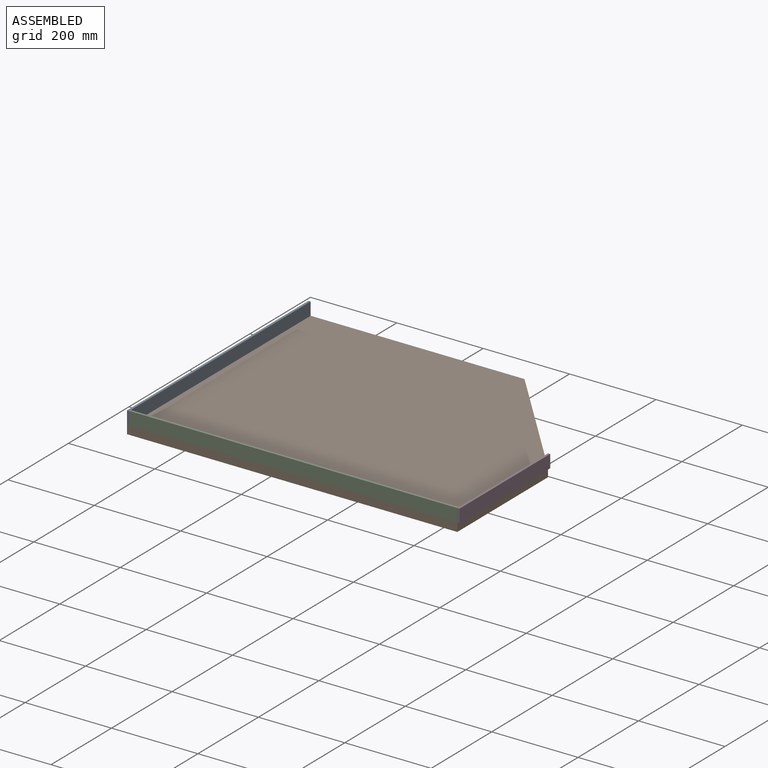
[diagram: assembled view]
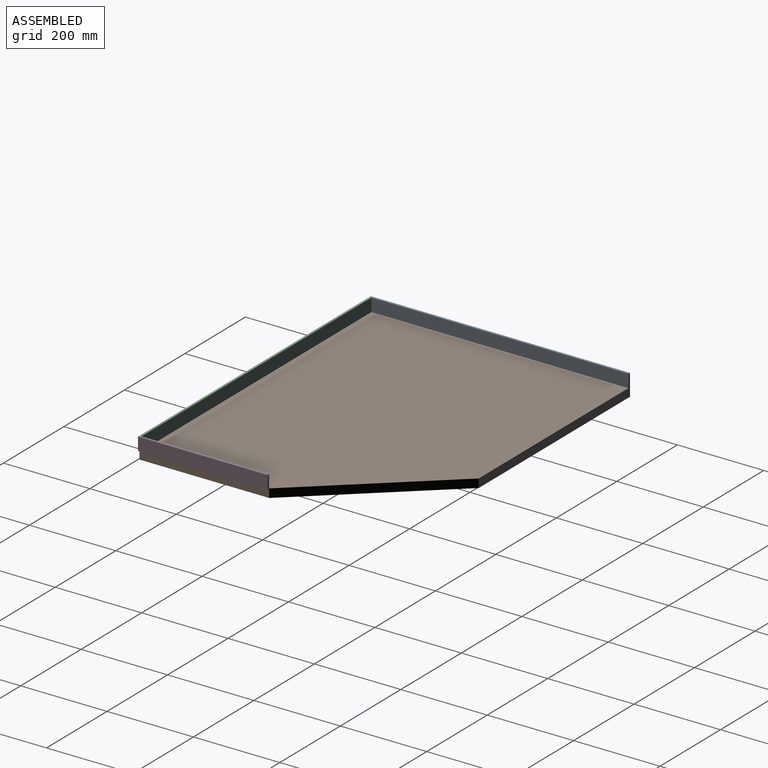
[diagram: assembled view, second angle]
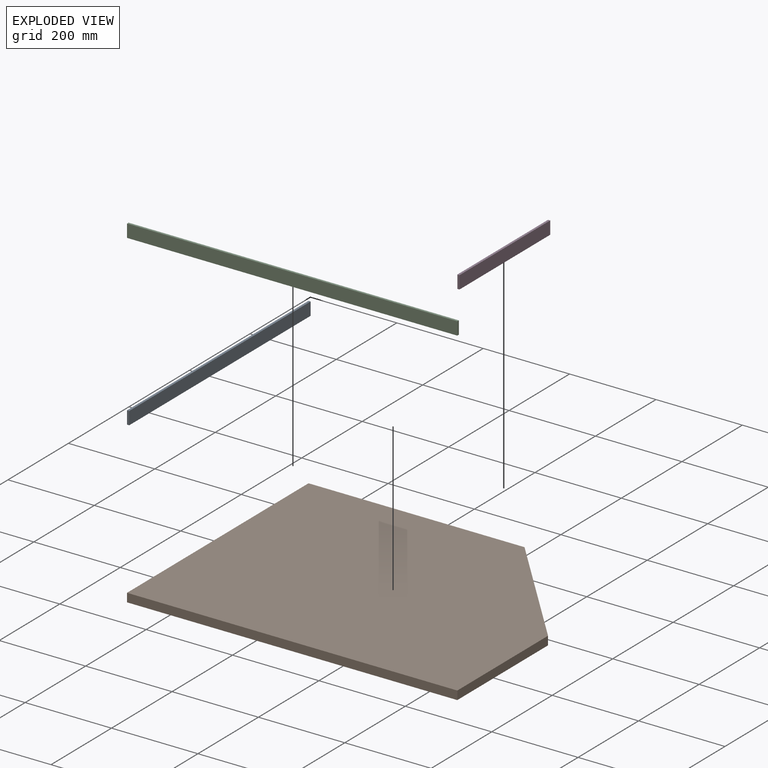
[diagram: exploded view]
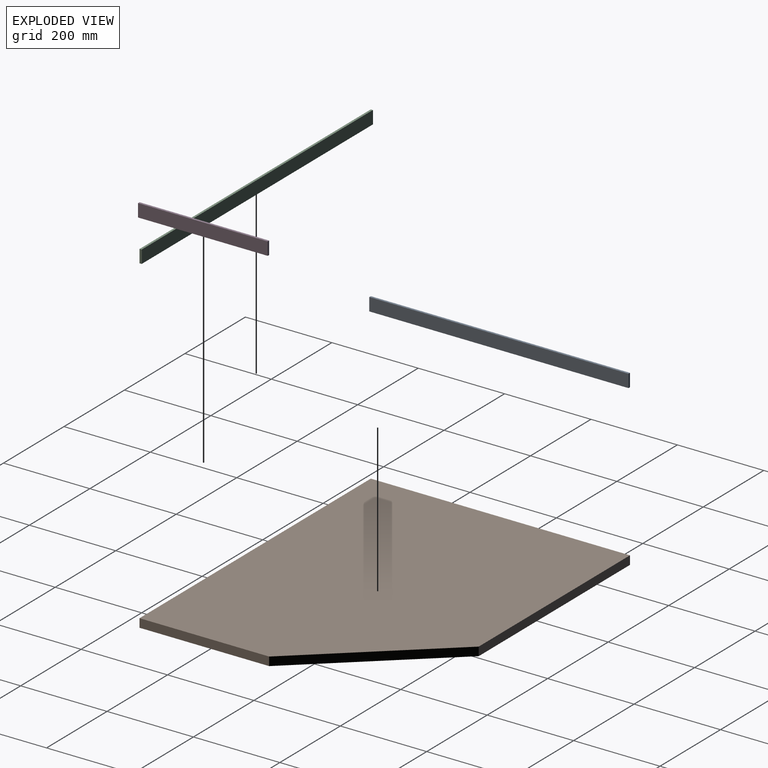
[diagram: exploded view, second angle]
ASSEMBLY  parts=4 mates=3
PART A: 6 faces, bbox 5x600x30 mm
  f0: plane 30x5mm, normal (0,1,0), area 150mm2, adj f1,f3,f4,f5
  f1: plane 600x30mm, normal (-1,0,0), area 18000mm2, adj f0,f2,f4,f5
  f2: plane 30x5mm, normal (0,-1,0), area 150mm2, adj f1,f3,f4,f5
  f3: plane 600x30mm, normal (1,0,0), area 18000mm2, adj f0,f2,f4,f5
  f4: plane 600x5mm, normal (0,0,1), area 3000mm2, adj f0,f1,f2,f3
  f5: plane 600x5mm, normal (0,0,-1), area 3000mm2, adj f0,f1,f2,f3
PART B: 7 faces, bbox 764.6x600x20 mm
  f0: plane 500x20mm, normal (0,1,0), area 10000mm2, adj f1,f4,f5,f6
  f1: plane 600x20mm, normal (-1,0,0), area 12000mm2, adj f0,f2,f5,f6
  f2: plane 764.58x20mm, normal (0,-1,0), area 15291.5mm2, adj f1,f3,f5,f6
  f3: plane 300x20mm, normal (1,0,0), area 6000mm2, adj f2,f4,f5,f6
  f4: plane 300x264.58mm, normal (0.75,0.66,0), area 8000mm2, adj f0,f3,f5,f6
  f5: plane 764.58x600mm, normal (0,0,1), area 419058.8mm2, adj f0,f1,f2,f3,f4
  f6: plane 764.58x600mm, normal (0,0,-1), area 419058.8mm2, adj f0,f1,f2,f3,f4
PART C: 6 faces, bbox 5x764.6x30 mm
  f0: plane 30x5mm, normal (0,1,0), area 150mm2, adj f1,f3,f4,f5
  f1: plane 764.58x30mm, normal (-1,0,0), area 22937.2mm2, adj f0,f2,f4,f5
  f2: plane 30x5mm, normal (0,-1,0), area 150mm2, adj f1,f3,f4,f5
  f3: plane 764.58x30mm, normal (1,0,0), area 22937.2mm2, adj f0,f2,f4,f5
  f4: plane 764.58x5mm, normal (0,0,1), area 3822.9mm2, adj f0,f1,f2,f3
  f5: plane 764.58x5mm, normal (0,0,-1), area 3822.9mm2, adj f0,f1,f2,f3
PART D: 6 faces, bbox 5x300x30 mm
  f0: plane 30x5mm, normal (0,1,0), area 150mm2, adj f1,f3,f4,f5
  f1: plane 300x30mm, normal (-1,0,0), area 9000mm2, adj f0,f2,f4,f5
  f2: plane 30x5mm, normal (0,-1,0), area 150mm2, adj f1,f3,f4,f5
  f3: plane 300x30mm, normal (1,0,0), area 9000mm2, adj f0,f2,f4,f5
  f4: plane 300x5mm, normal (0,0,1), area 1500mm2, adj f0,f1,f2,f3
  f5: plane 300x5mm, normal (0,0,-1), area 1500mm2, adj f0,f1,f2,f3
PLACE A rot(axis=(0,0,1),180deg) t=(-577.89,1251,502.84)mm
PLACE B t=(-9.14,1214.75,482.84)mm
PLACE C rot(axis=(0,0,-1),90deg) t=(-445.67,585.28,502.84)mm
PLACE D t=(383.79,677.8,502.84)mm
MATE fastened B.f5 <-> A.f5  axis (0,0,1) through (-481.5,953.42,502.84)mm
MATE fastened B.f5 <-> C.f5  axis (0,0,1) through (-99.21,653.42,502.84)mm
MATE fastened B.f5 <-> D.f5  axis (0,0,1) through (283.08,803.42,502.84)mm
